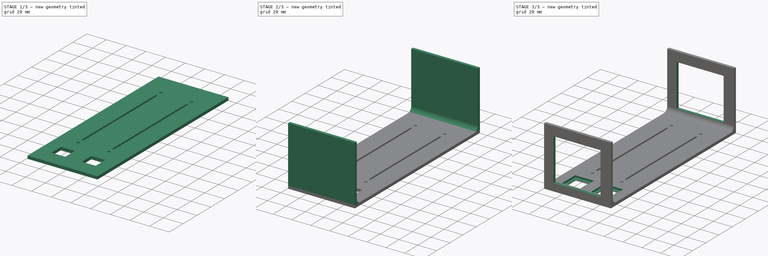
[diagram: build sequence overview — one tinted view per stage of 3, left to right]
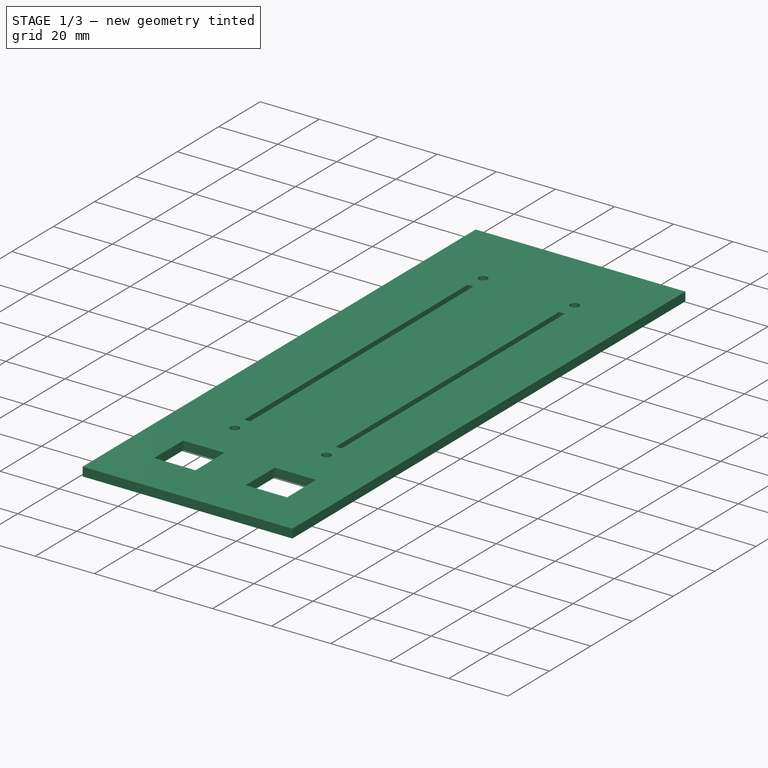
[diagram: stage 1 of 3 — iso view after this stage's code; geometry added in this stage tinted green]
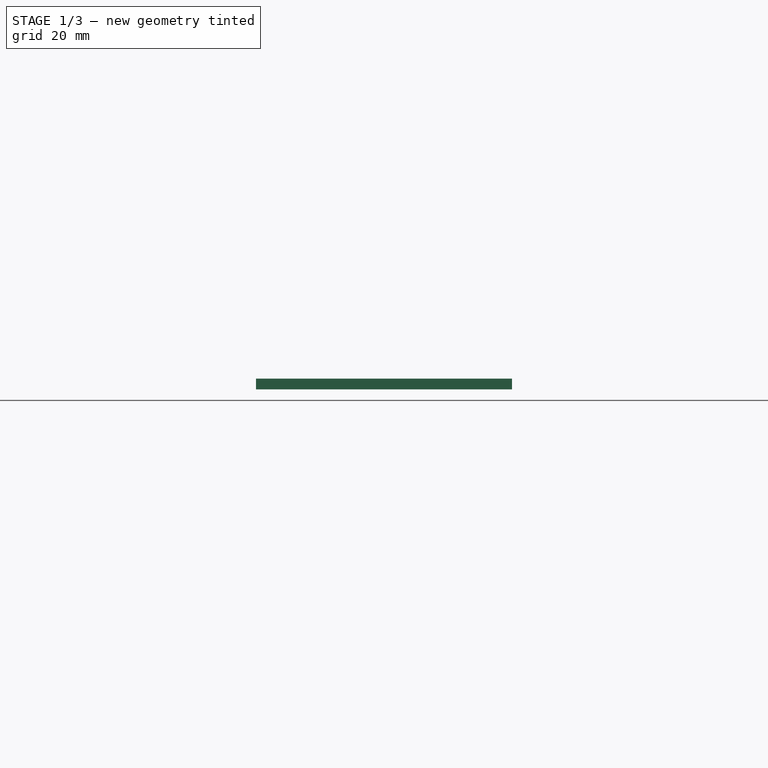
[diagram: stage 1 of 3 — front view after this stage's code; geometry added in this stage tinted green]
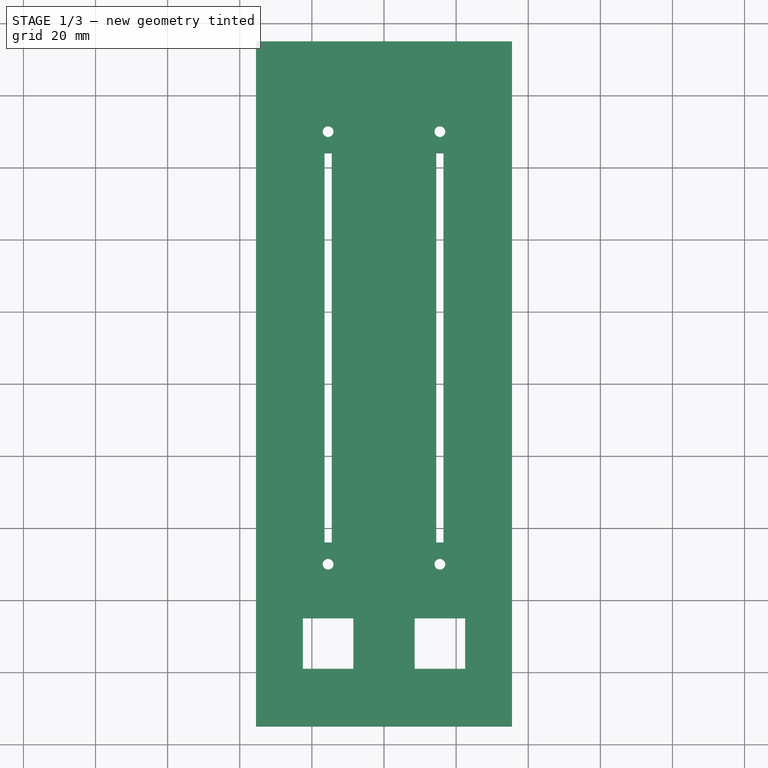
[diagram: stage 1 of 3 — top view after this stage's code; geometry added in this stage tinted green]
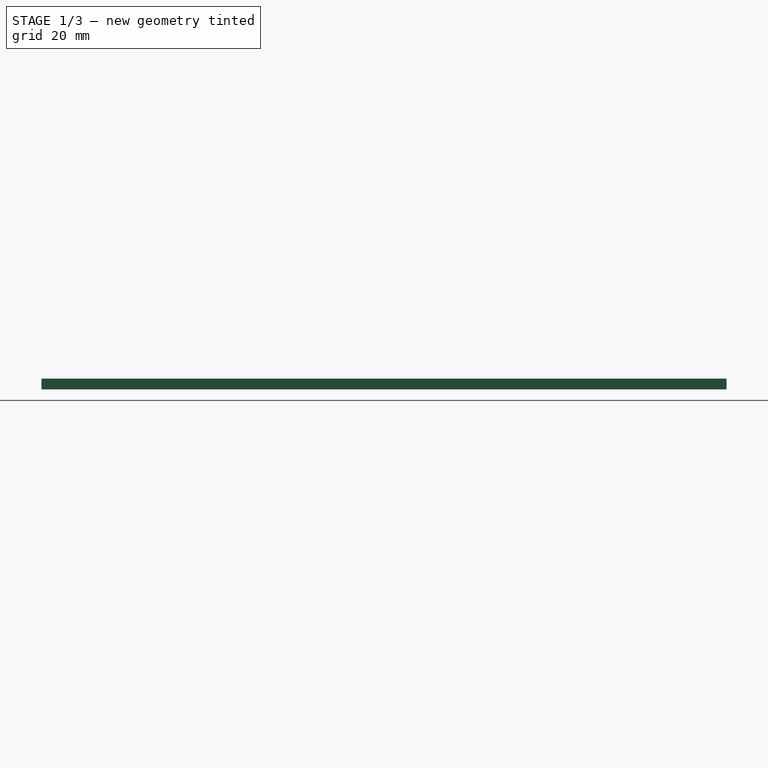
[diagram: stage 1 of 3 — right view after this stage's code; geometry added in this stage tinted green]
FCSTD DOCUMENT  (FreeCAD 0.21R33771 (Git))
Label: fader test stand
License: All rights reserved
LicenseURL: http://en.wikipedia.org/wiki/All_rights_reserved
objects: Sketcher::SketchObject×5, PartDesign::Pocket×3, PartDesign::Pad×2, PartDesign::Fillet×1, PartDesign::Body×1
note: 18 computed .brp shape members not serialized (recipe doc carries the construction recipe); baked Part::Feature solids carry a one-line shape summary decoded from their .brp

FEATURE [Sketcher::SketchObject] Sketch
  FullyConstrained = true
  MapMode = 5
  Support = -> [XY_Plane]
  sketch-geometry (4):
    g0: LineSegment StartX=-35.5 StartY=95 StartZ=0 EndX=35.5 EndY=95 EndZ=0
    g1: LineSegment StartX=35.5 StartY=95 StartZ=0 EndX=35.5 EndY=-95 EndZ=0
    g2: LineSegment StartX=35.5 StartY=-95 StartZ=0 EndX=-35.5 EndY=-95 EndZ=0
    g3: LineSegment StartX=-35.5 StartY=-95 StartZ=0 EndX=-35.5 EndY=95 EndZ=0
  constraints (12):
    c: Coincident(g0,g1)
    c: Coincident(g1,g2)
    c: Coincident(g2,g3)
    c: Coincident(g3,g0)
    c: Horizontal(g0)
    c: Horizontal(g2)
    c: Vertical(g1)
    c: Vertical(g3)
    c: DistanceX(g0,g0) = 71
    c: DistanceX(g-1,g0) = 35.5
    c: DistanceY(g3,g3) = 190
    c: DistanceY(g-1,g0) = 95
FEATURE [PartDesign::Pad] Pad
  Direction = (0,0,1)
  Length = 3
  Length2 = 10
  Profile = -> Sketch
  ReferenceAxis = -> Sketch [N_Axis]
  Type = 0
FEATURE [Sketcher::SketchObject] Sketch001
  ExternalGeometry = -> [Pad]
  FullyConstrained = true
  MapMode = 5
  Placement = pos=(0,0,3) rot=(0,0,1;0rad)
  Support = -> [Pad]
  sketch-geometry (20):
    g0: LineSegment StartX=-22.5 StartY=-65 StartZ=0 EndX=-8.5 EndY=-65 EndZ=0
    g1: LineSegment StartX=-8.5 StartY=-65 StartZ=0 EndX=-8.5 EndY=-79 EndZ=0
    g2: LineSegment StartX=-8.5 StartY=-79 StartZ=0 EndX=-22.5 EndY=-79 EndZ=0
    g3: LineSegment StartX=-22.5 StartY=-79 StartZ=0 EndX=-22.5 EndY=-65 EndZ=0
    g4: LineSegment StartX=-16.5 StartY=64 StartZ=0 EndX=-14.5 EndY=64 EndZ=0
    g5: LineSegment StartX=-14.5 StartY=64 StartZ=0 EndX=-14.5 EndY=-44 EndZ=0
    g6: LineSegment StartX=-14.5 StartY=-44 StartZ=0 EndX=-16.5 EndY=-44 EndZ=0
    g7: LineSegment StartX=-16.5 StartY=-44 StartZ=0 EndX=-16.5 EndY=64 EndZ=0
    g8: Circle CenterX=-15.5 CenterY=70 CenterZ=0 NormalX=0 NormalY=0 NormalZ=1 AngleXU=0 Radius=1.5
    g9: Circle CenterX=-15.5 CenterY=-50 CenterZ=0 NormalX=0 NormalY=0 NormalZ=1 AngleXU=0 Radius=1.5
    g10: LineSegment StartX=8.5 StartY=-65 StartZ=0 EndX=22.5 EndY=-65 EndZ=0
    g11: LineSegment StartX=22.5 StartY=-65 StartZ=0 EndX=22.5 EndY=-79 EndZ=0
    g12: LineSegment StartX=22.5 StartY=-79 StartZ=0 EndX=8.5 EndY=-79 EndZ=0
    g13: LineSegment StartX=8.5 StartY=-79 StartZ=0 EndX=8.5 EndY=-65 EndZ=0
    g14: LineSegment StartX=14.5 StartY=64 StartZ=0 EndX=16.5 EndY=64 EndZ=0
    g15: LineSegment StartX=16.5 StartY=64 StartZ=0 EndX=16.5 EndY=-44 EndZ=0
    g16: LineSegment StartX=16.5 StartY=-44 StartZ=0 EndX=14.5 EndY=-44 EndZ=0
    g17: LineSegment StartX=14.5 StartY=-44 StartZ=0 EndX=14.5 EndY=64 EndZ=0
    g18: Circle CenterX=15.5 CenterY=70 CenterZ=0 NormalX=0 NormalY=0 NormalZ=1 AngleXU=0 Radius=1.5
    g19: Circle CenterX=15.5 CenterY=-50 CenterZ=0 NormalX=0 NormalY=0 NormalZ=1 AngleXU=0 Radius=1.5
  constraints (60):
    c: Coincident(g0,g1)
    c: Coincident(g1,g2)
    c: Coincident(g2,g3)
    c: Coincident(g3,g0)
    c: Horizontal(g0)
    c: Horizontal(g2)
    c: Vertical(g1)
    c: Vertical(g3)
    c: Coincident(g4,g5)
    c: Coincident(g5,g6)
    c: Coincident(g6,g7)
    c: Coincident(g7,g4)
    c: Horizontal(g4)
    c: Horizontal(g6)
    c: Vertical(g5)
    c: Vertical(g7)
    c: Equal(g0,g3)
    c: Equal(g9,g8)
    c: Diameter(g8) = 3
    c: DistanceY(g3,g3) = 14
    c: DistanceY(g7,g7) = 108
    c: DistanceX(g6,g6) = 2
    c: DistanceX(g4,g8) = 1
    c: DistanceY(g4,g8) = 6
    c: DistanceY(g9,g6) = 6
    c: DistanceX(g6,g9) = 1
    c: DistanceX(g0,g9) = 7
    c: DistanceY(g0,g9) = 15
    c: DistanceX(g-3,g8) = 20
    c: DistanceY(g8,g-3) = 25
    c: Coincident(g10,g11)
    c: Coincident(g11,g12)
    c: Coincident(g12,g13)
    c: Coincident(g13,g10)
    c: Horizontal(g10)
    c: Horizontal(g12)
    c: Vertical(g11)
    c: Vertical(g13)
    c: Coincident(g14,g15)
    c: Coincident(g15,g16)
    c: Coincident(g16,g17)
    c: Coincident(g17,g14)
    c: Horizontal(g14)
    c: Horizontal(g16)
    c: Vertical(g15)
    c: Vertical(g17)
    c: Equal(g10,g13)
    c: Equal(g19,g18)
    c: Equal(g8,g18) = 3
    c: Equal(g3,g13) = 14
    c: Equal(g7,g17) = 108
    c: Equal(g6,g16) = 2
    c: DistanceX(g14,g18) = 1
    c: DistanceY(g14,g18) = 6
    c: DistanceY(g19,g16) = 6
    c: DistanceX(g16,g19) = 1
    c: DistanceX(g10,g19) = 7
    c: DistanceY(g10,g19) = 15
    c: DistanceY(g18,g8) = 0
    c: DistanceX(g8,g18) = 31
FEATURE [PartDesign::Pocket] Pocket
  BaseFeature = -> Pad
  Direction = (0,0,-1)
  Length = 3
  Length2 = 5
  Profile = -> Sketch001
  ReferenceAxis = -> Sketch001 [N_Axis]
  Type = 0
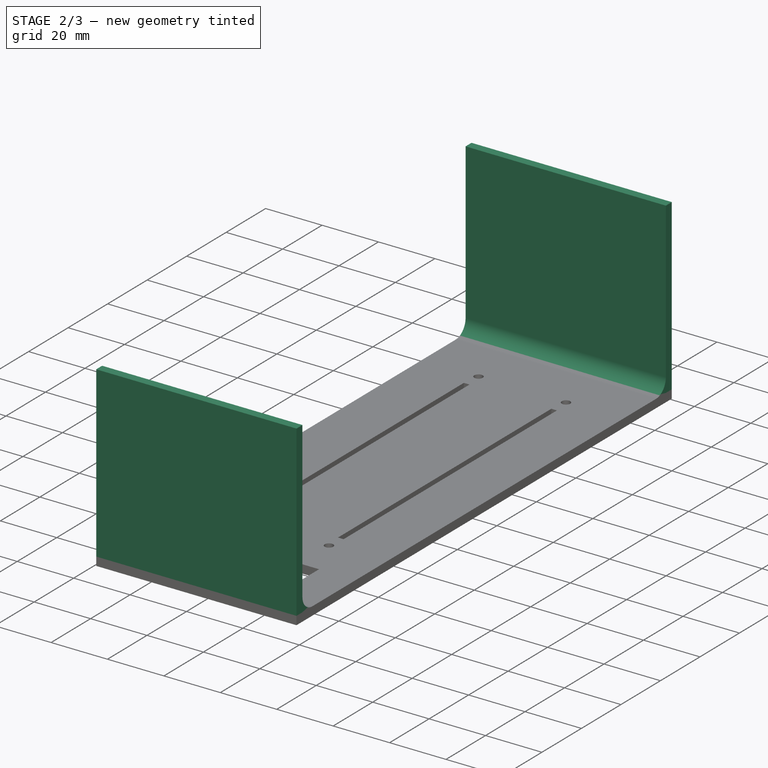
[diagram: stage 2 of 3 — iso view after this stage's code; geometry added in this stage tinted green]
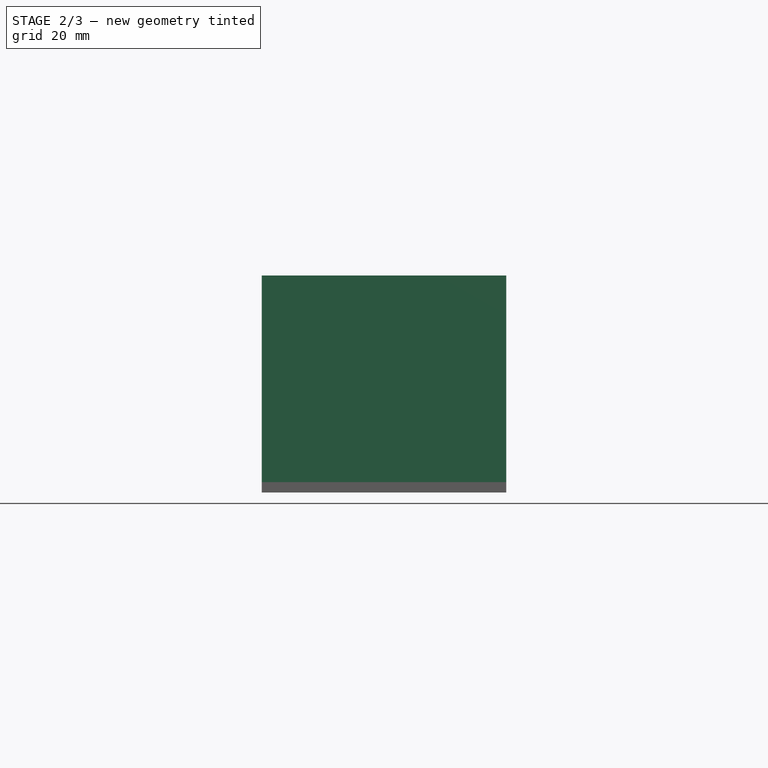
[diagram: stage 2 of 3 — front view after this stage's code; geometry added in this stage tinted green]
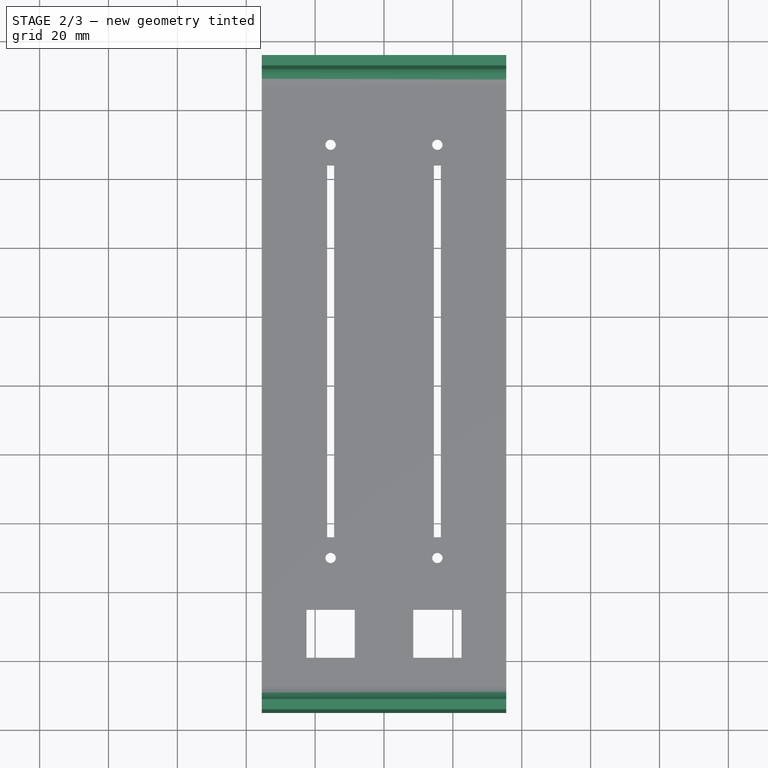
[diagram: stage 2 of 3 — top view after this stage's code; geometry added in this stage tinted green]
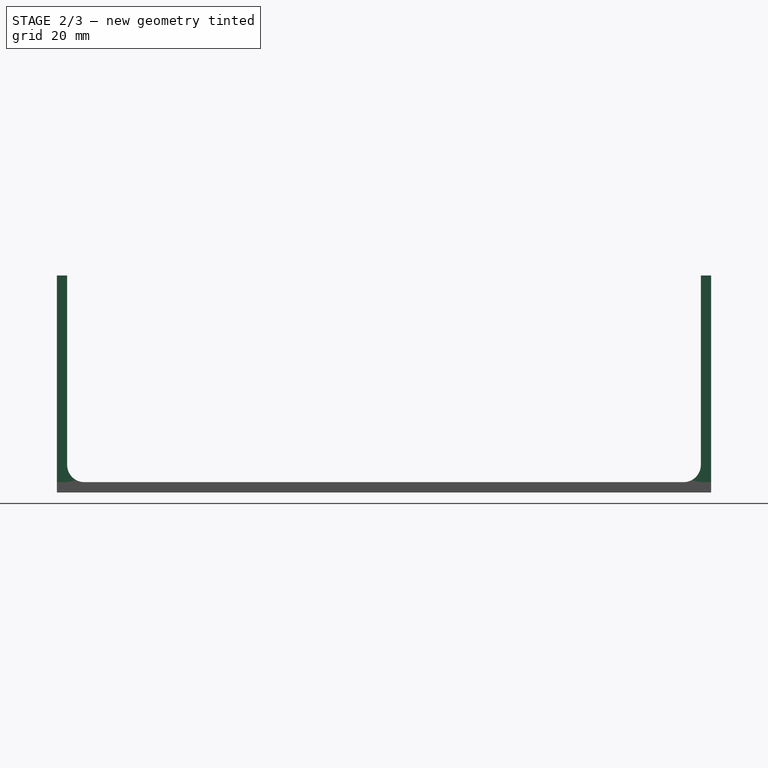
[diagram: stage 2 of 3 — right view after this stage's code; geometry added in this stage tinted green]
FEATURE [Sketcher::SketchObject] Sketch002
  ExternalGeometry = -> [Pocket]
  FullyConstrained = true
  MapMode = 5
  Placement = pos=(0,0,3) rot=(0,0,1;0rad)
  Support = -> [Pocket]
  sketch-geometry (8):
    g0: LineSegment StartX=-35.5 StartY=95 StartZ=0 EndX=35.5 EndY=95 EndZ=0
    g1: LineSegment StartX=35.5 StartY=95 StartZ=0 EndX=35.5 EndY=92 EndZ=0
    g2: LineSegment StartX=35.5 StartY=92 StartZ=0 EndX=-35.5 EndY=92 EndZ=0
    g3: LineSegment StartX=-35.5 StartY=92 StartZ=0 EndX=-35.5 EndY=95 EndZ=0
    g4: LineSegment StartX=-35.5 StartY=-95 StartZ=0 EndX=35.5 EndY=-95 EndZ=0
    g5: LineSegment StartX=35.5 StartY=-95 StartZ=0 EndX=35.5 EndY=-92 EndZ=0
    g6: LineSegment StartX=35.5 StartY=-92 StartZ=0 EndX=-35.5 EndY=-92 EndZ=0
    g7: LineSegment StartX=-35.5 StartY=-92 StartZ=0 EndX=-35.5 EndY=-95 EndZ=0
  constraints (20):
    c: Coincident(g0,g1)
    c: Coincident(g1,g2)
    c: Coincident(g2,g3)
    c: Coincident(g3,g0)
    c: Horizontal(g2)
    c: Vertical(g1)
    c: Vertical(g3)
    c: Coincident(g0,g-5)
    c: Coincident(g0,g-6)
    c: DistanceY(g3,g3) = 3
    c: Coincident(g4,g5)
    c: Coincident(g5,g6)
    c: Coincident(g6,g7)
    c: Coincident(g7,g4)
    c: Horizontal(g6)
    c: Vertical(g5)
    c: Vertical(g7)
    c: Coincident(g4,g-3)
    c: Coincident(g-4,g4)
    c: DistanceY(g7,g7) = 3
FEATURE [PartDesign::Pad] Pad001
  BaseFeature = -> Pocket
  Direction = (0,0,1)
  Length = 60
  Length2 = 10
  Profile = -> Sketch002
  ReferenceAxis = -> Sketch002 [N_Axis]
  Type = 0
FEATURE [PartDesign::Fillet] Fillet
  Base = -> Pad001 [Edge43,Edge44]
  BaseFeature = -> Pad001
  Radius = 5
  SupportTransform = false
  UseAllEdges = false
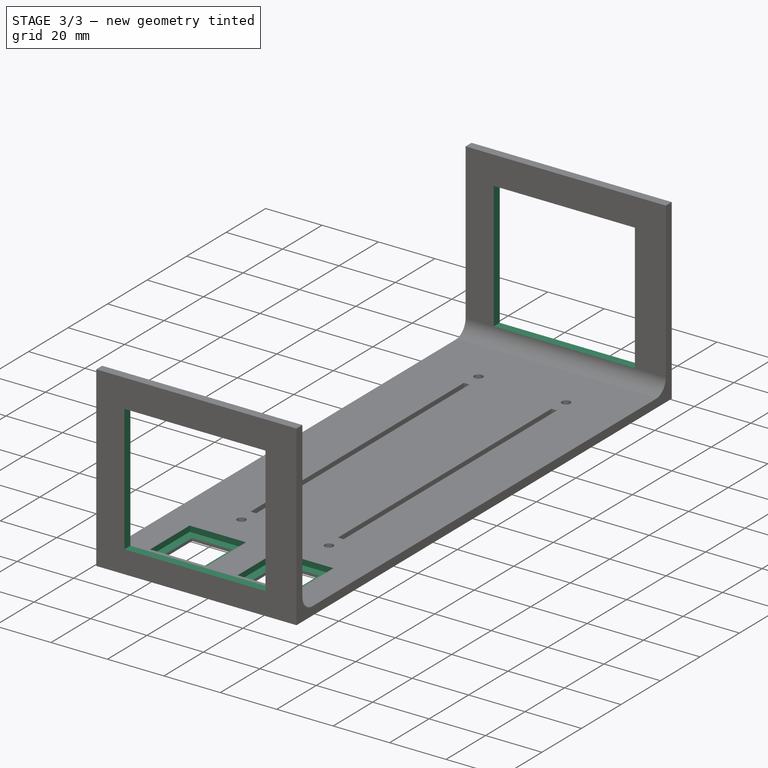
[diagram: stage 3 of 3 — iso view after this stage's code; geometry added in this stage tinted green]
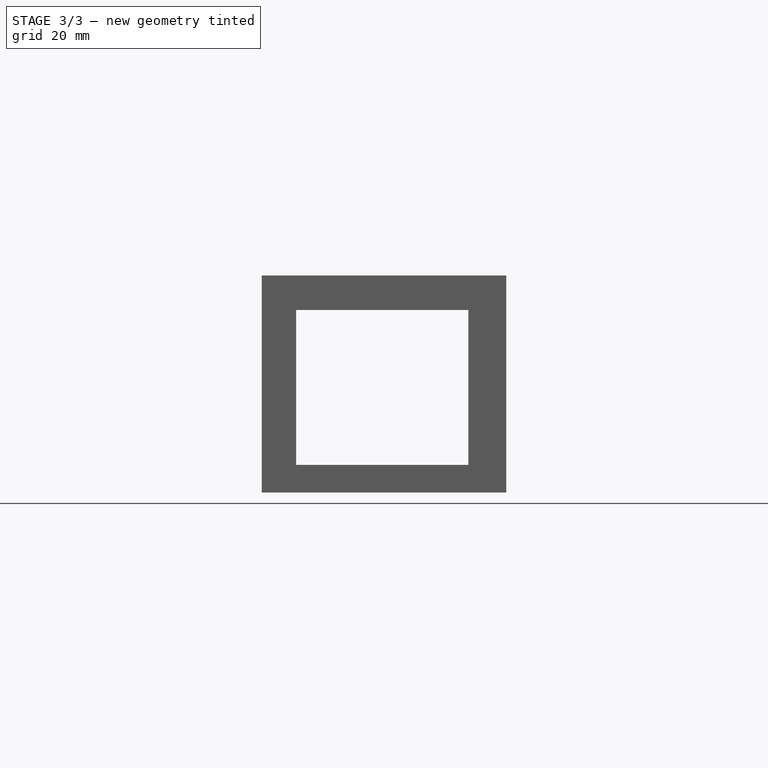
[diagram: stage 3 of 3 — front view after this stage's code; geometry added in this stage tinted green]
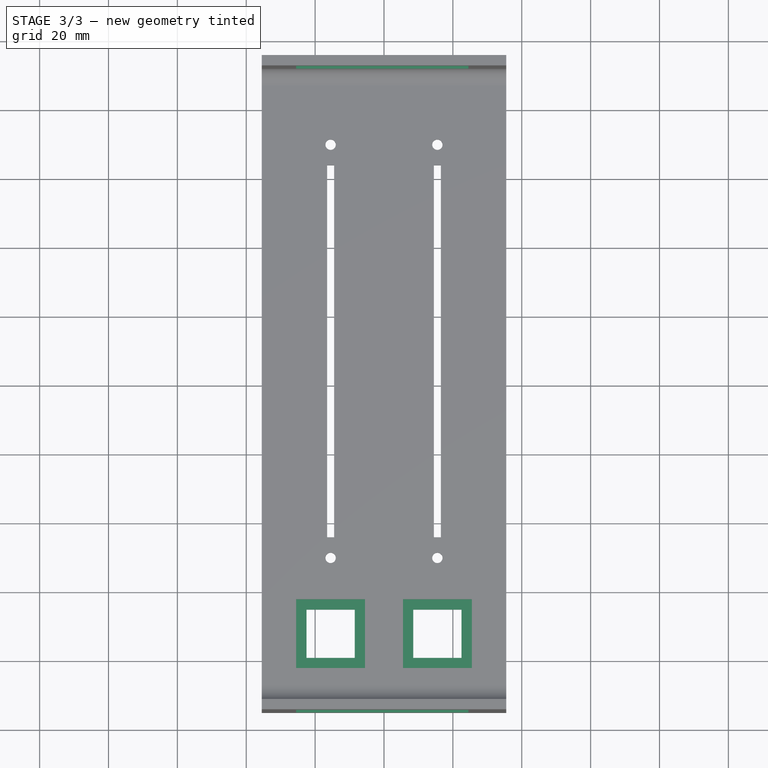
[diagram: stage 3 of 3 — top view after this stage's code; geometry added in this stage tinted green]
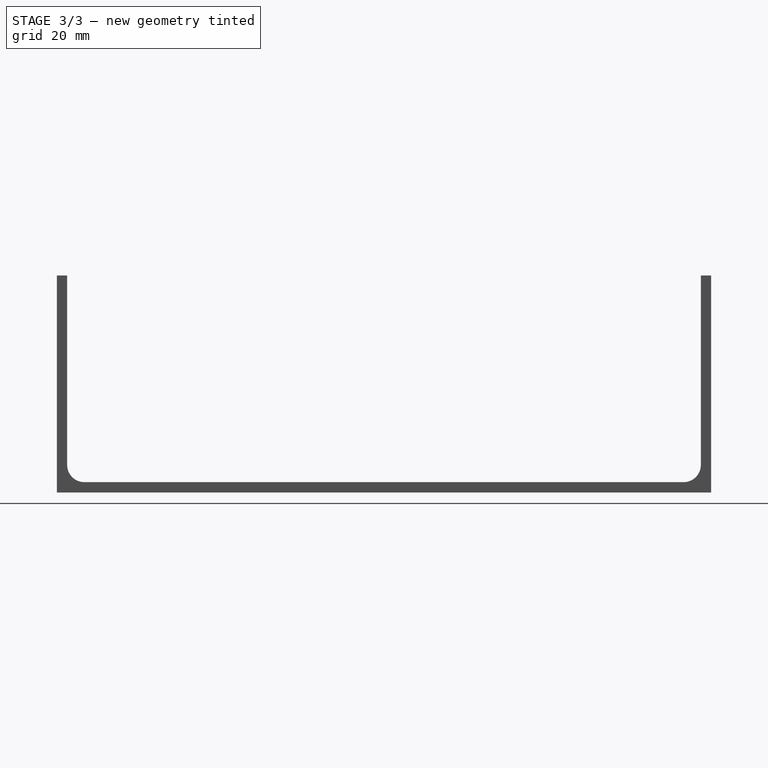
[diagram: stage 3 of 3 — right view after this stage's code; geometry added in this stage tinted green]
FEATURE [Sketcher::SketchObject] Sketch003
  ExternalGeometry = -> [Fillet]
  FullyConstrained = true
  MapMode = 5
  Placement = pos=(0,0,3) rot=(0,0,1;0rad)
  Support = -> [Fillet]
  sketch-geometry (8):
    g0: LineSegment StartX=-25.5 StartY=-62 StartZ=0 EndX=-5.5 EndY=-62 EndZ=0
    g1: LineSegment StartX=-5.5 StartY=-62 StartZ=0 EndX=-5.5 EndY=-82 EndZ=0
    g2: LineSegment StartX=-5.5 StartY=-82 StartZ=0 EndX=-25.5 EndY=-82 EndZ=0
    g3: LineSegment StartX=-25.5 StartY=-82 StartZ=0 EndX=-25.5 EndY=-62 EndZ=0
    g4: LineSegment StartX=5.5 StartY=-62 StartZ=0 EndX=25.5 EndY=-62 EndZ=0
    g5: LineSegment StartX=25.5 StartY=-62 StartZ=0 EndX=25.5 EndY=-82 EndZ=0
    g6: LineSegment StartX=25.5 StartY=-82 StartZ=0 EndX=5.5 EndY=-82 EndZ=0
    g7: LineSegment StartX=5.5 StartY=-82 StartZ=0 EndX=5.5 EndY=-62 EndZ=0
  constraints (24):
    c: Coincident(g0,g1)
    c: Coincident(g1,g2)
    c: Coincident(g2,g3)
    c: Coincident(g3,g0)
    c: Horizontal(g0)
    c: Horizontal(g2)
    c: Vertical(g1)
    c: Vertical(g3)
    c: Coincident(g4,g5)
    c: Coincident(g5,g6)
    c: Coincident(g6,g7)
    c: Coincident(g7,g4)
    c: Horizontal(g4)
    c: Horizontal(g6)
    c: Vertical(g5)
    c: Vertical(g7)
    c: DistanceY(g3,g3) = 20
    c: Equal(g3,g0)
    c: Equal(g4,g7)
    c: Equal(g4,g0)
    c: DistanceY(g-3,g0) = 3
    c: DistanceX(g-3,g0) = 3
    c: DistanceX(g-4,g4) = 3
    c: DistanceY(g-4,g4) = 3
FEATURE [PartDesign::Pocket] Pocket001
  BaseFeature = -> Fillet
  Direction = (0,0,-1)
  Length = 2
  Length2 = 5
  Profile = -> Sketch003
  ReferenceAxis = -> Sketch003 [N_Axis]
  Type = 0
FEATURE [Sketcher::SketchObject] Sketch004
  ExternalGeometry = -> [Pocket001]
  FullyConstrained = true
  MapMode = 5
  Placement = pos=(1.9e-14,-95,0) rot=(1,0,0;1.5708rad)
  Support = -> [Pocket001]
  sketch-geometry (4):
    g0: LineSegment StartX=-25.5 StartY=53 StartZ=0 EndX=24.5 EndY=53 EndZ=0
    g1: LineSegment StartX=24.5 StartY=53 StartZ=0 EndX=24.5 EndY=8 EndZ=0
    g2: LineSegment StartX=24.5 StartY=8 StartZ=0 EndX=-25.5 EndY=8 EndZ=0
    g3: LineSegment StartX=-25.5 StartY=8 StartZ=0 EndX=-25.5 EndY=53 EndZ=0
  constraints (12):
    c: Coincident(g0,g1)
    c: Coincident(g1,g2)
    c: Coincident(g2,g3)
    c: Coincident(g3,g0)
    c: Horizontal(g0)
    c: Horizontal(g2)
    c: Vertical(g1)
    c: Vertical(g3)
    c: DistanceX(g0,g0) = 50
    c: DistanceX(g-3,g0) = 10
    c: DistanceY(g0,g-3) = 10
    c: DistanceY(g3,g3) = 45
FEATURE [PartDesign::Pocket] Pocket002
  BaseFeature = -> Pocket001
  Direction = (-2e-16,1,-2e-16)
  Length = 200
  Length2 = 5
  Profile = -> Sketch004
  ReferenceAxis = -> Sketch004 [N_Axis]
  Type = 0
FEATURE [PartDesign::Body] Body
  Group = -> [Sketch,Pad,Sketch001,Pocket,Sketch002,Pad001,Fillet,Sketch003,Pocket001,Sketch004,Pocket002]
  Origin = -> Origin
  Tip = -> Pocket002
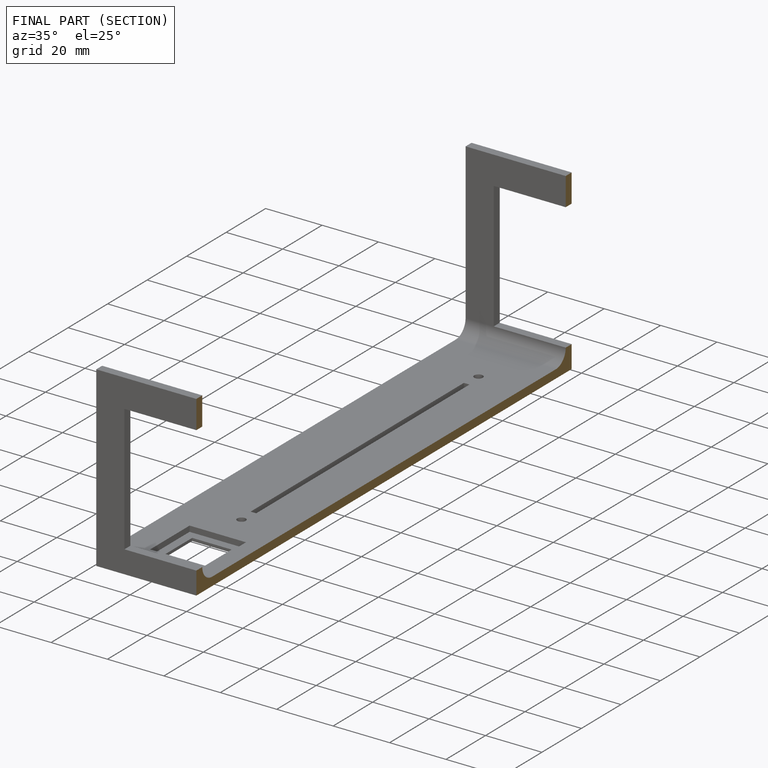
[diagram: finished part — half-section view (interior)]
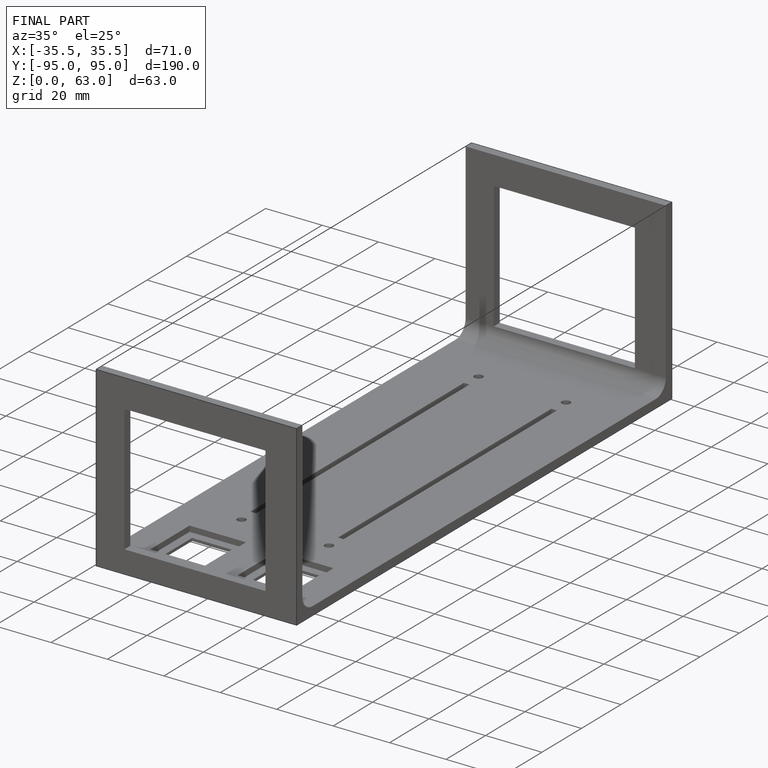
[diagram: finished part — iso view with bounding-box wireframe]
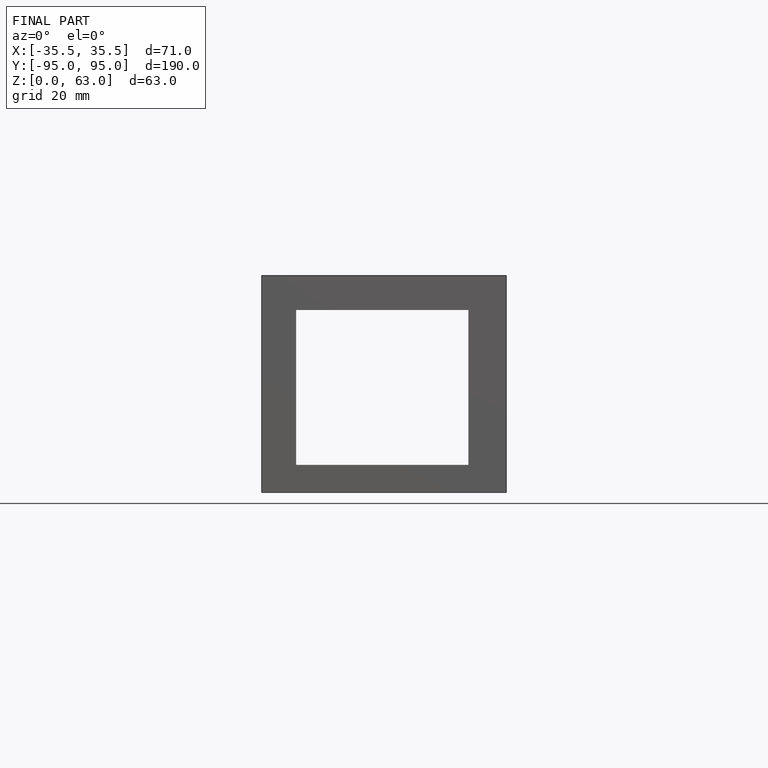
[diagram: finished part — front view with bounding-box wireframe]
